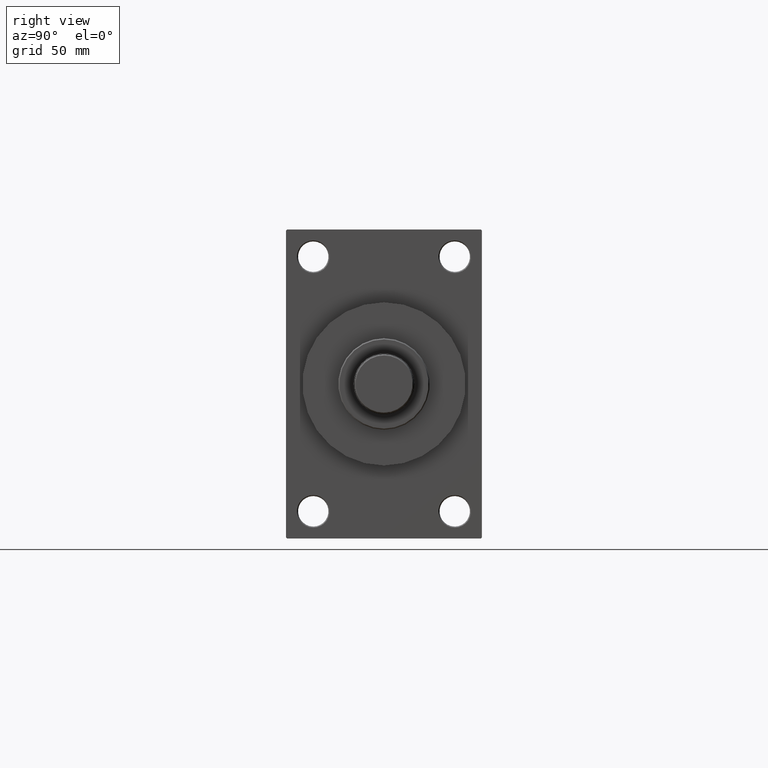
[diagram: clean part render]
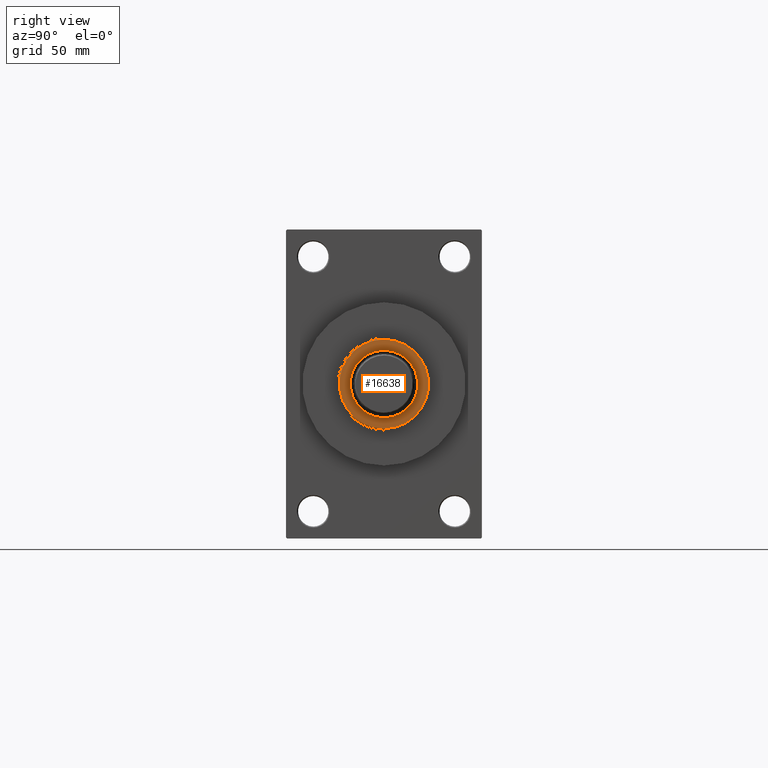
[diagram: same view with one face highlighted and labeled with its STEP entity id]
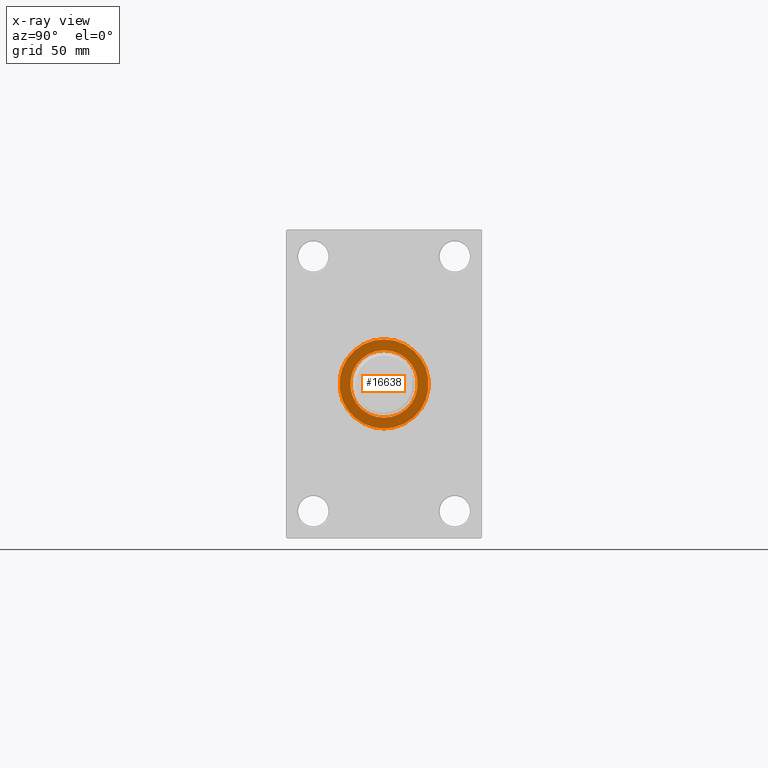
[diagram: x-ray of the same camera — body ghosted, the highlighted face saturated]
A machine part, right view. The second image highlights one B-rep face of the part: STEP entity #16638.
The next image is the same camera in x-ray: the body ghosted, the highlighted face saturated — about 0% of this face is hidden behind the body in this view.
In plain terms, the highlighted planar face has unit normal (1, 0, 0).
Its self-contained STEP definition (entity closure, byte-faithful):
#902 = DIRECTION ( 'NONE',  ( 1.000000000000000000, 0.000000000000000000, 0.000000000000000000 ) ) ;
#934 = DIRECTION ( 'NONE',  ( 1.000000000000000000, 0.000000000000000000, 0.000000000000000000 ) ) ;
#2244 = CARTESIAN_POINT ( 'NONE',  ( 0.000000000000000000, 0.000000000000000000, 54.26000000000000512 ) ) ;
#5018 = DIRECTION ( 'NONE',  ( 0.000000000000000000, 0.000000000000000000, 1.000000000000000000 ) ) ;
#9334 = CIRCLE ( 'NONE', #36323, 15.50000000000000000 ) ;
#9383 = VERTEX_POINT ( 'NONE', #46569 ) ;
#10417 = DIRECTION ( 'NONE',  ( 0.000000000000000000, 0.000000000000000000, 1.000000000000000000 ) ) ;
#11095 = FACE_OUTER_BOUND ( 'NONE', #36210, .T. ) ;
#12714 = CARTESIAN_POINT ( 'NONE',  ( 0.000000000000000000, 0.000000000000000000, 54.26000000000000512 ) ) ;
#14004 = AXIS2_PLACEMENT_3D ( 'NONE', #12714, #5018, #934 ) ;
#14019 = FACE_BOUND ( 'NONE', #21185, .T. ) ;
#14737 = DIRECTION ( 'NONE',  ( 1.000000000000000000, 0.000000000000000000, 0.000000000000000000 ) ) ;
#16638 = ADVANCED_FACE ( 'NONE', ( #14019, #11095 ), #25354, .T. ) ;
#17890 = AXIS2_PLACEMENT_3D ( 'NONE', #2244, #21061, #28541 ) ;
#18582 = DIRECTION ( 'NONE',  ( 1.000000000000000000, 0.000000000000000000, -0.000000000000000000 ) ) ;
#19079 = CARTESIAN_POINT ( 'NONE',  ( 15.50000000000000000, 0.000000000000000000, 54.26000000000000512 ) ) ;
#19199 = EDGE_CURVE ( 'NONE', #9383, #32709, #40179, .T. ) ;
#19800 = EDGE_CURVE ( 'NONE', #32709, #9383, #21724, .T. ) ;
#20461 = EDGE_CURVE ( 'NONE', #28248, #36871, #30179, .T. ) ;
#21061 = DIRECTION ( 'NONE',  ( 0.000000000000000000, 0.000000000000000000, 1.000000000000000000 ) ) ;
#21185 = EDGE_LOOP ( 'NONE', ( #24601, #46891 ) ) ;
#21724 = CIRCLE ( 'NONE', #30989, 20.50000000000001776 ) ;
#24601 = ORIENTED_EDGE ( 'NONE', *, *, #46320, .F. ) ;
#24763 = CARTESIAN_POINT ( 'NONE',  ( -15.50000000000000000, 1.898202538678397557E-15, 54.26000000000000512 ) ) ;
#25354 = PLANE ( 'NONE',  #42401 ) ;
#25817 = CARTESIAN_POINT ( 'NONE',  ( 0.000000000000000000, 0.000000000000000000, 54.26000000000000512 ) ) ;
#28248 = VERTEX_POINT ( 'NONE', #24763 ) ;
#28541 = DIRECTION ( 'NONE',  ( 1.000000000000000000, 0.000000000000000000, 0.000000000000000000 ) ) ;
#28953 = CARTESIAN_POINT ( 'NONE',  ( -20.50000000000001776, 0.000000000000000000, 54.26000000000000512 ) ) ;
#28992 = CARTESIAN_POINT ( 'NONE',  ( 0.000000000000000000, 0.000000000000000000, 54.26000000000000512 ) ) ;
#30179 = CIRCLE ( 'NONE', #17890, 15.50000000000000000 ) ;
#30989 = AXIS2_PLACEMENT_3D ( 'NONE', #28992, #10417, #14737 ) ;
#31395 = ORIENTED_EDGE ( 'NONE', *, *, #19800, .T. ) ;
#32709 = VERTEX_POINT ( 'NONE', #28953 ) ;
#36210 = EDGE_LOOP ( 'NONE', ( #31395, #37066 ) ) ;
#36323 = AXIS2_PLACEMENT_3D ( 'NONE', #41162, #45253, #902 ) ;
#36457 = DIRECTION ( 'NONE',  ( 0.000000000000000000, 0.000000000000000000, 1.000000000000000000 ) ) ;
#36871 = VERTEX_POINT ( 'NONE', #19079 ) ;
#37066 = ORIENTED_EDGE ( 'NONE', *, *, #19199, .T. ) ;
#40179 = CIRCLE ( 'NONE', #14004, 20.50000000000001776 ) ;
#41162 = CARTESIAN_POINT ( 'NONE',  ( 0.000000000000000000, 0.000000000000000000, 54.26000000000000512 ) ) ;
#42401 = AXIS2_PLACEMENT_3D ( 'NONE', #25817, #36457, #18582 ) ;
#45253 = DIRECTION ( 'NONE',  ( 0.000000000000000000, 0.000000000000000000, 1.000000000000000000 ) ) ;
#46320 = EDGE_CURVE ( 'NONE', #36871, #28248, #9334, .T. ) ;
#46569 = CARTESIAN_POINT ( 'NONE',  ( 20.50000000000001776, 2.541142108230759057E-15, 54.26000000000000512 ) ) ;
#46891 = ORIENTED_EDGE ( 'NONE', *, *, #20461, .F. ) ;